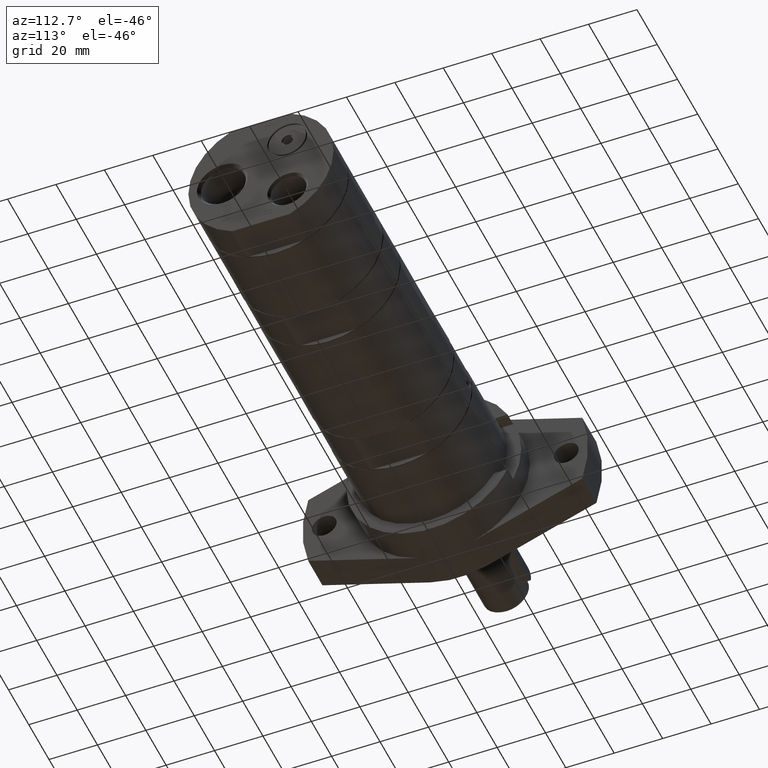
[diagram: clean part render]
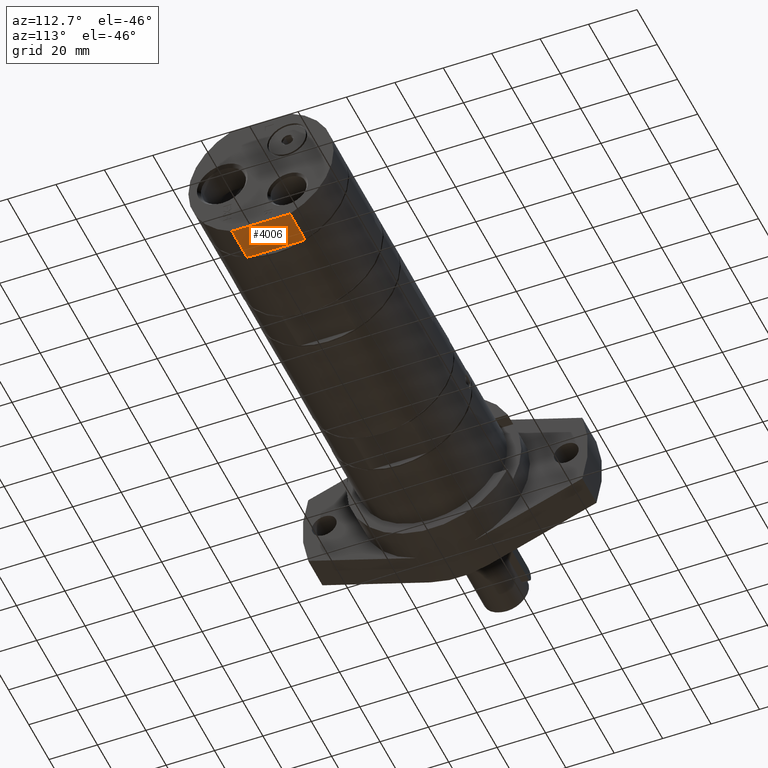
[diagram: same view with one face highlighted and labeled with its STEP entity id]
A machine part, auxiliary view. The second image highlights one B-rep face of the part: STEP entity #4006.
In plain terms, the highlighted planar face has unit normal (-0, 0, 1).
Its self-contained STEP definition (entity closure, byte-faithful):
#16=(
BOUNDED_CURVE()
B_SPLINE_CURVE(2,(#6451,#6452,#6453),.UNSPECIFIED.,.F.,.F.)
B_SPLINE_CURVE_WITH_KNOTS((3,3),(0.,0.0828004736235522),.UNSPECIFIED.)
CURVE()
GEOMETRIC_REPRESENTATION_ITEM()
RATIONAL_B_SPLINE_CURVE((1.,1.00008356283499,1.))
REPRESENTATION_ITEM('')
);
#17=(
BOUNDED_CURVE()
B_SPLINE_CURVE(2,(#6457,#6458,#6459),.UNSPECIFIED.,.F.,.F.)
B_SPLINE_CURVE_WITH_KNOTS((3,3),(0.,0.0828004736235522),.UNSPECIFIED.)
CURVE()
GEOMETRIC_REPRESENTATION_ITEM()
RATIONAL_B_SPLINE_CURVE((1.,1.00008356283499,1.))
REPRESENTATION_ITEM('')
);
#395=LINE('',#5889,#704);
#576=LINE('',#6455,#885);
#577=LINE('',#6460,#886);
#578=LINE('',#6461,#887);
#704=VECTOR('',#4738,10.);
#885=VECTOR('',#5103,10.);
#886=VECTOR('',#5104,10.);
#887=VECTOR('',#5105,10.);
#1130=FACE_OUTER_BOUND('',#1365,.T.);
#1365=EDGE_LOOP('',(#3197,#3198,#3199,#3200,#3201,#3202));
#1745=VERTEX_POINT('',#5886);
#1746=VERTEX_POINT('',#5888);
#1895=VERTEX_POINT('',#6449);
#1896=VERTEX_POINT('',#6450);
#1897=VERTEX_POINT('',#6454);
#1898=VERTEX_POINT('',#6456);
#2147=EDGE_CURVE('',#1745,#1746,#395,.T.);
#2367=EDGE_CURVE('',#1895,#1896,#16,.T.);
#2368=EDGE_CURVE('',#1897,#1895,#576,.T.);
#2369=EDGE_CURVE('',#1898,#1897,#17,.T.);
#2370=EDGE_CURVE('',#1746,#1898,#577,.T.);
#2371=EDGE_CURVE('',#1896,#1745,#578,.T.);
#3197=ORIENTED_EDGE('',*,*,#2367,.F.);
#3198=ORIENTED_EDGE('',*,*,#2368,.F.);
#3199=ORIENTED_EDGE('',*,*,#2369,.F.);
#3200=ORIENTED_EDGE('',*,*,#2370,.F.);
#3201=ORIENTED_EDGE('',*,*,#2147,.F.);
#3202=ORIENTED_EDGE('',*,*,#2371,.F.);
#3851=PLANE('',#4307);
#4006=ADVANCED_FACE('',(#1130),#3851,.F.);
#4307=AXIS2_PLACEMENT_3D('',#6448,#5101,#5102);
#4738=DIRECTION('',(0.,1.,0.));
#5101=DIRECTION('center_axis',(-2.46716227694479E-16,0.,1.));
#5102=DIRECTION('ref_axis',(1.,0.,2.46716227694479E-16));
#5103=DIRECTION('',(0.,-1.,0.));
#5104=DIRECTION('',(-1.,0.,0.));
#5105=DIRECTION('',(1.,0.,0.));
#5886=CARTESIAN_POINT('',(41.,-11.9895788082818,-27.5));
#5888=CARTESIAN_POINT('',(41.,11.9895788082818,-27.5));
#5889=CARTESIAN_POINT('',(41.,7.50000000000001,-27.5));
#6448=CARTESIAN_POINT('Origin',(44.,0.,-27.5));
#6449=CARTESIAN_POINT('',(26.,-11.2178429299041,-27.5));
#6450=CARTESIAN_POINT('',(26.3,-11.9895788082818,-27.5));
#6451=CARTESIAN_POINT('Ctrl Pts',(26.,-11.2178429299041,-27.5));
#6452=CARTESIAN_POINT('Ctrl Pts',(26.1450119240705,-11.6017718342226,-27.5));
#6453=CARTESIAN_POINT('Ctrl Pts',(26.3,-11.9895788082818,-27.5));
#6454=CARTESIAN_POINT('',(26.,11.2178429299041,-27.5));
#6455=CARTESIAN_POINT('',(26.,0.,-27.5));
#6456=CARTESIAN_POINT('',(26.3,11.9895788082818,-27.5));
#6457=CARTESIAN_POINT('Ctrl Pts',(26.3,11.9895788082818,-27.5));
#6458=CARTESIAN_POINT('Ctrl Pts',(26.1450119240705,11.6017718342226,-27.5));
#6459=CARTESIAN_POINT('Ctrl Pts',(26.,11.2178429299041,-27.5));
#6460=CARTESIAN_POINT('',(20.5,11.9895788082818,-27.5));
#6461=CARTESIAN_POINT('',(20.5,-11.9895788082818,-27.5));